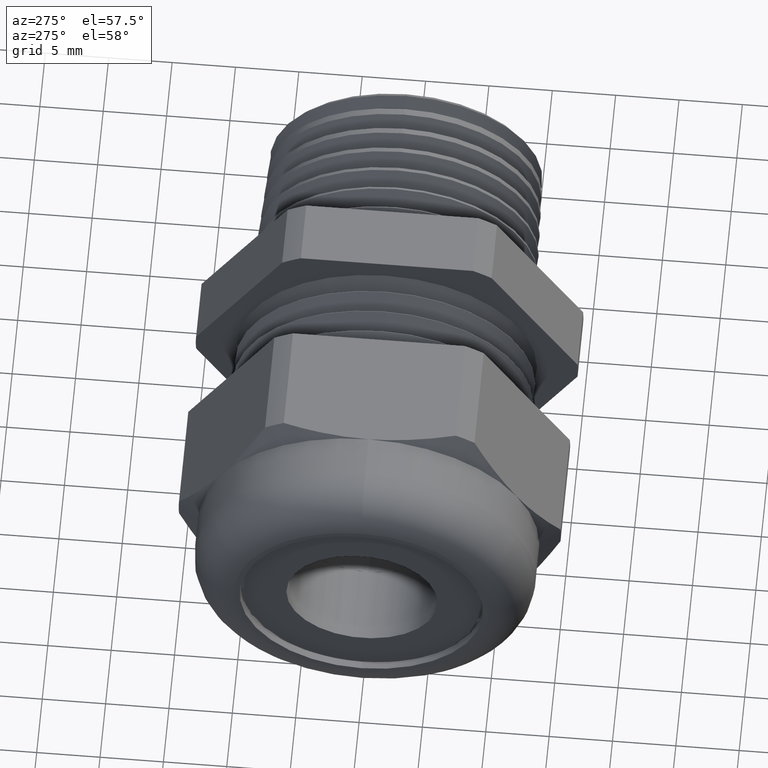
[diagram: clean part render]
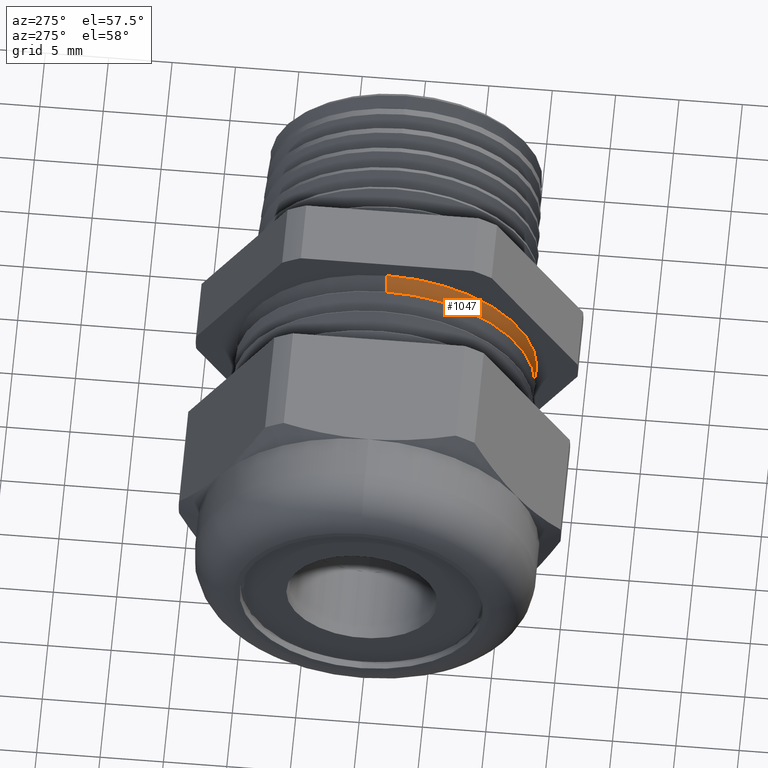
[diagram: same view with one face highlighted and labeled with its STEP entity id]
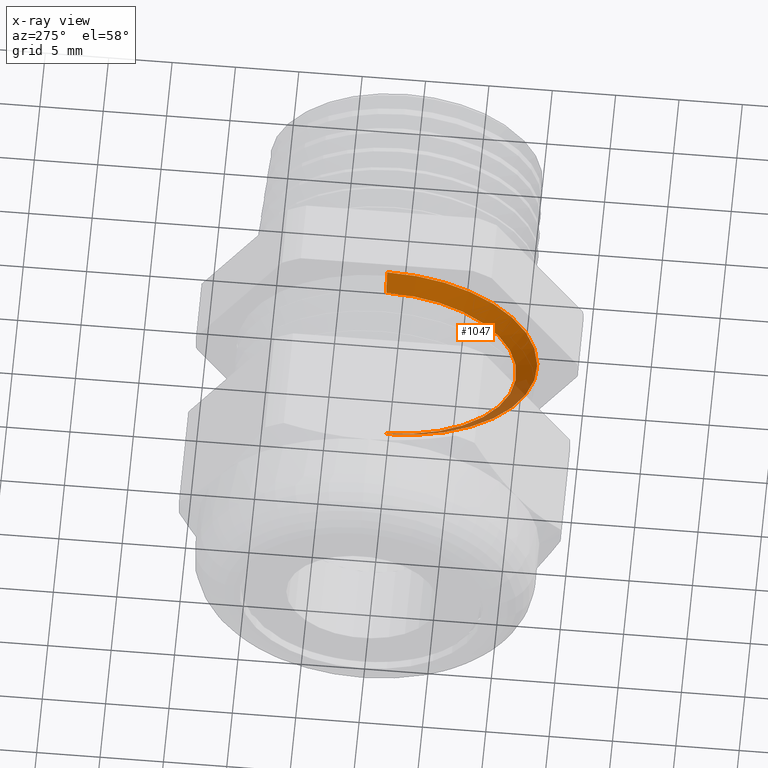
[diagram: x-ray of the same camera — body ghosted, the highlighted face saturated]
A machine part, auxiliary view. The second image highlights one B-rep face of the part: STEP entity #1047.
The next image is the same camera in x-ray: the body ghosted, the highlighted face saturated — about 16% of this face is hidden behind the body in this view.
In plain terms, the highlighted conical surface has half-angle 60 deg.
Its self-contained STEP definition (entity closure, byte-faithful):
#361 = VERTEX_POINT ( 'NONE', #1883 ) ;
#387 = EDGE_CURVE ( 'NONE', #395, #388, #1903, .T. ) ;
#388 = VERTEX_POINT ( 'NONE', #1899 ) ;
#391 = VERTEX_POINT ( 'NONE', #1893 ) ;
#393 = EDGE_CURVE ( 'NONE', #361, #391, #1892, .T. ) ;
#395 = VERTEX_POINT ( 'NONE', #1888 ) ;
#436 = EDGE_CURVE ( 'NONE', #388, #391, #1991, .T. ) ;
#1047 = ADVANCED_FACE ( 'NONE', ( #3127 ), #3126, .T. ) ;
#1048 = EDGE_LOOP ( 'NONE', ( #1100, #1101, #1103, #1104 ) ) ;
#1100 = ORIENTED_EDGE ( 'NONE', *, *, #387, .F. ) ;
#1101 = ORIENTED_EDGE ( 'NONE', *, *, #1102, .T. ) ;
#1102 = EDGE_CURVE ( 'NONE', #395, #361, #3183, .T. ) ;
#1103 = ORIENTED_EDGE ( 'NONE', *, *, #393, .T. ) ;
#1104 = ORIENTED_EDGE ( 'NONE', *, *, #436, .F. ) ;
#1883 = CARTESIAN_POINT ( 'NONE',  ( -0.2178333499851235200, 0.0000000000000000000, -0.4045410714285714300 ) ) ;
#1888 = CARTESIAN_POINT ( 'NONE',  ( -0.2178333499851235200, 5.332975976854831100E-017, 0.4045410714285714300 ) ) ;
#1889 = DIRECTION ( 'NONE',  ( 0.5000000000000027800, 0.0000000000000000000, -0.8660254037844369300 ) ) ;
#1890 = VECTOR ( 'NONE', #1889, 39.37007874015748100 ) ;
#1891 = CARTESIAN_POINT ( 'NONE',  ( -0.2178333499851235200, 0.0000000000000000000, -0.4045410714285714300 ) ) ;
#1892 = LINE ( 'NONE', #1891, #1890 ) ;
#1893 = CARTESIAN_POINT ( 'NONE',  ( -0.1821190809226271600, 0.0000000000000000000, -0.4663999999999999800 ) ) ;
#1899 = CARTESIAN_POINT ( 'NONE',  ( -0.1821190809226271600, 5.711752671223254800E-017, 0.4663999999999999800 ) ) ;
#1900 = DIRECTION ( 'NONE',  ( 0.5000000000000027800, 1.060575238724904800E-016, 0.8660254037844369300 ) ) ;
#1901 = VECTOR ( 'NONE', #1900, 39.37007874015748100 ) ;
#1902 = CARTESIAN_POINT ( 'NONE',  ( -0.2178333499851235200, 4.954199282486407400E-017, 0.4045410714285714300 ) ) ;
#1903 = LINE ( 'NONE', #1902, #1901 ) ;
#1987 = DIRECTION ( 'NONE',  ( 0.0000000000000000000, 0.0000000000000000000, -1.000000000000000000 ) ) ;
#1988 = DIRECTION ( 'NONE',  ( 1.000000000000000000, 0.0000000000000000000, 0.0000000000000000000 ) ) ;
#1989 = CARTESIAN_POINT ( 'NONE',  ( -0.1821190809226271600, 0.0000000000000000000, 0.0000000000000000000 ) ) ;
#1990 = AXIS2_PLACEMENT_3D ( 'NONE', #1989, #1988, #1987 ) ;
#1991 = CIRCLE ( 'NONE', #1990, 0.4663999999999999800 ) ;
#3122 = DIRECTION ( 'NONE',  ( 0.0000000000000000000, 0.0000000000000000000, -1.000000000000000000 ) ) ;
#3123 = DIRECTION ( 'NONE',  ( 1.000000000000000000, 0.0000000000000000000, 0.0000000000000000000 ) ) ;
#3124 = AXIS2_PLACEMENT_3D ( 'NONE', #3131, #3123, #3122 ) ;
#3126 = CONICAL_SURFACE ( 'NONE', #3124, 0.4045410714285714300, 1.047197551196594500 ) ;
#3127 = FACE_OUTER_BOUND ( 'NONE', #1048, .T. ) ;
#3131 = CARTESIAN_POINT ( 'NONE',  ( -0.2178333499851235200, 0.0000000000000000000, 0.0000000000000000000 ) ) ;
#3179 = DIRECTION ( 'NONE',  ( 0.0000000000000000000, 0.0000000000000000000, -1.000000000000000000 ) ) ;
#3180 = DIRECTION ( 'NONE',  ( 1.000000000000000000, 0.0000000000000000000, 0.0000000000000000000 ) ) ;
#3181 = CARTESIAN_POINT ( 'NONE',  ( -0.2178333499851235200, 0.0000000000000000000, 0.0000000000000000000 ) ) ;
#3182 = AXIS2_PLACEMENT_3D ( 'NONE', #3181, #3180, #3179 ) ;
#3183 = CIRCLE ( 'NONE', #3182, 0.4045410714285714300 ) ;